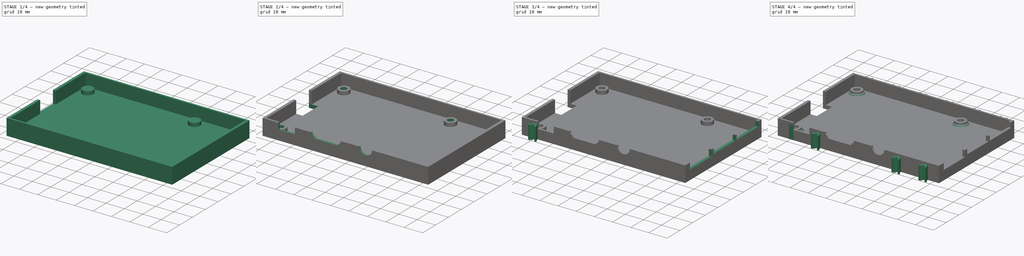
[diagram: build sequence overview — one tinted view per stage of 4, left to right]
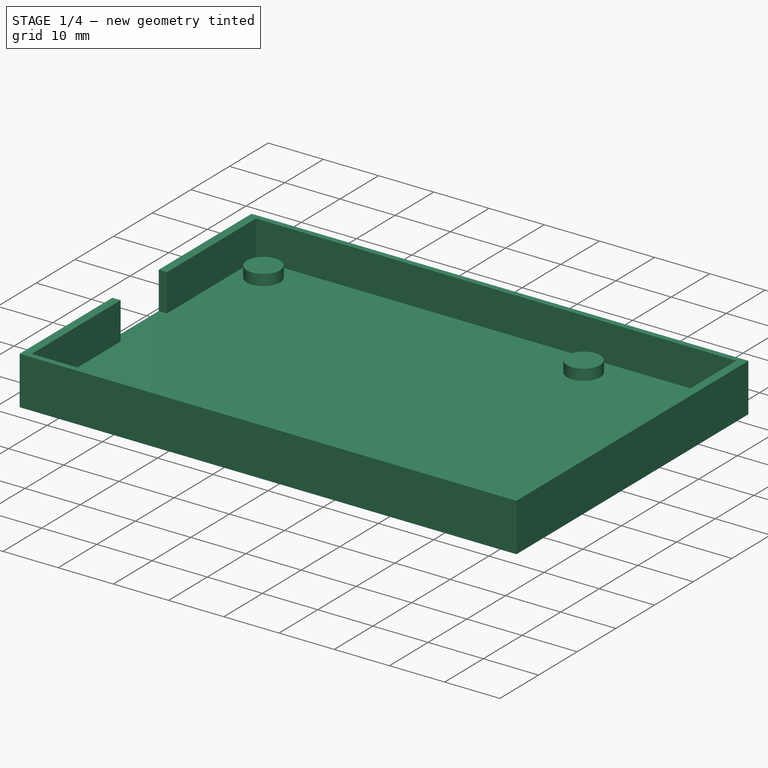
[diagram: stage 1 of 4 — iso view after this stage's code; geometry added in this stage tinted green]
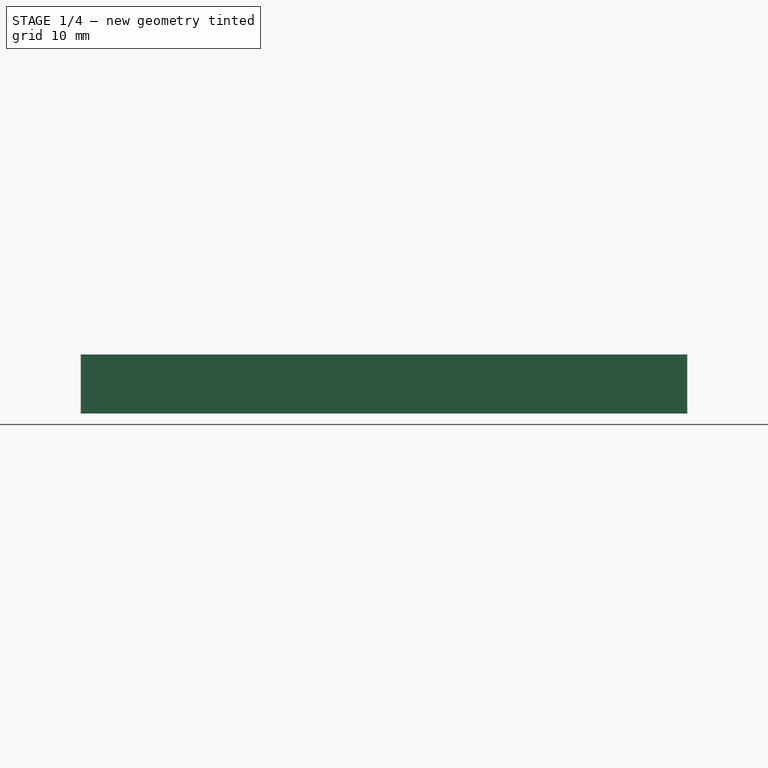
[diagram: stage 1 of 4 — front view after this stage's code; geometry added in this stage tinted green]
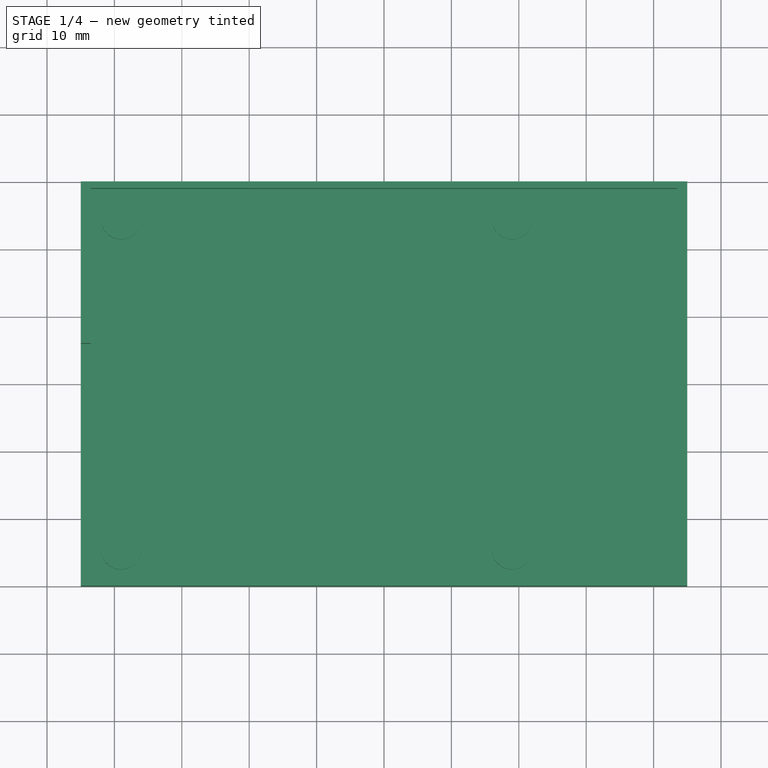
[diagram: stage 1 of 4 — top view after this stage's code; geometry added in this stage tinted green]
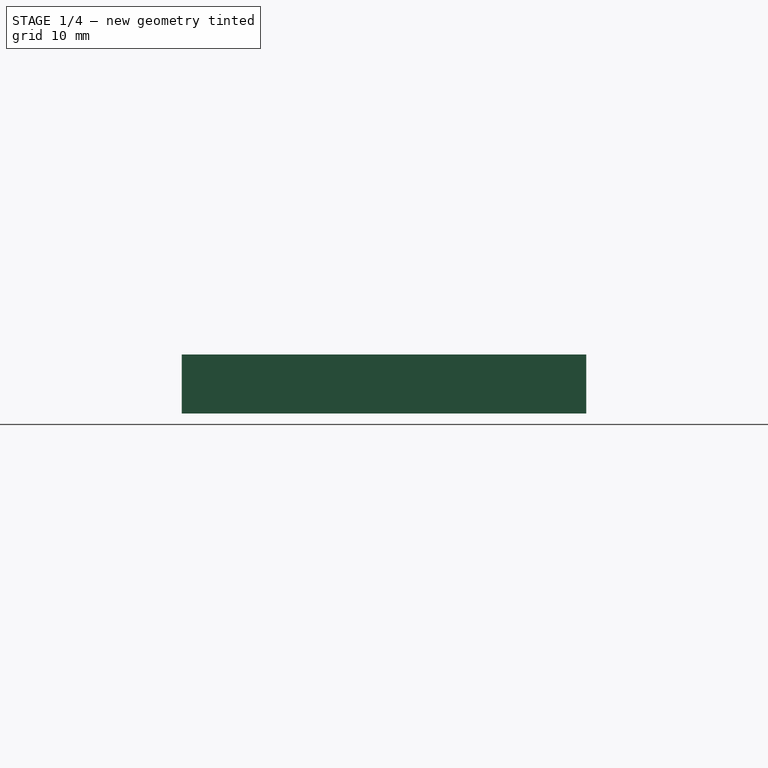
[diagram: stage 1 of 4 — right view after this stage's code; geometry added in this stage tinted green]
FCSTD DOCUMENT  (FreeCAD 0.16R6707 (Git))
Label: bottom
License: All rights reserved
LicenseURL: http://en.wikipedia.org/wiki/All_rights_reserved
objects: Sketcher::SketchObject×9, PartDesign::Pocket×5, PartDesign::Pad×4, PartDesign::Chamfer×2, PartDesign::LinearPattern×1, PartDesign::Mirrored×1, PartDesign::MultiTransform×1
note: 32 computed .brp shape members not serialized (recipe doc carries the construction recipe); baked Part::Feature solids carry a one-line shape summary decoded from their .brp

FEATURE [Sketcher::SketchObject] Sketch
  sketch-geometry (4):
    g0: LineSegment StartX=-45 StartY=30 StartZ=0 EndX=45 EndY=30 EndZ=0
    g1: LineSegment StartX=45 StartY=30 StartZ=0 EndX=45 EndY=-30 EndZ=0
    g2: LineSegment StartX=45 StartY=-30 StartZ=0 EndX=-45 EndY=-30 EndZ=0
    g3: LineSegment StartX=-45 StartY=-30 StartZ=0 EndX=-45 EndY=30 EndZ=0
  constraints (12):
    c: Coincident(g0,g1)
    c: Coincident(g1,g2)
    c: Coincident(g2,g3)
    c: Coincident(g3,g0)
    c: Horizontal(g0)
    c: Horizontal(g2)
    c: Vertical(g1)
    c: Vertical(g3)
    c: Symmetric(g0,g0,g-2)
    c: Symmetric(g0,g2,g-1)
    c: DistanceX(g0,g0) = 90
    c: DistanceY(g2,g0) = 60
FEATURE [PartDesign::Pad] Pad  label="Base"
  Length = 2
  Length2 = 100
  Sketch = -> Sketch
  Type = 0
FEATURE [Sketcher::SketchObject] Sketch001
  Placement = pos=(0,0,2) rot=(0,0,1;0rad)
  Support = -> Pad [Face6]
  sketch-geometry (8):
    g0: Circle CenterX=-39 CenterY=24.5 CenterZ=0 NormalX=0 NormalY=0 NormalZ=1 Radius=3
    g1: Circle CenterX=19 CenterY=24.5 CenterZ=0 NormalX=0 NormalY=0 NormalZ=1 Radius=3
    g2: Circle CenterX=19 CenterY=-24.5 CenterZ=0 NormalX=0 NormalY=0 NormalZ=1 Radius=3
    g3: Circle CenterX=-39 CenterY=-24.5 CenterZ=0 NormalX=0 NormalY=0 NormalZ=1 Radius=3
    g4: LineSegment [constr] StartX=-39 StartY=24.5 StartZ=0 EndX=19 EndY=24.5 EndZ=0
    g5: LineSegment [constr] StartX=19 StartY=24.5 StartZ=0 EndX=19 EndY=-24.5 EndZ=0
    g6: LineSegment [constr] StartX=19 StartY=-24.5 StartZ=0 EndX=-39 EndY=-24.5 EndZ=0
    g7: LineSegment [constr] StartX=-39 StartY=-24.5 StartZ=0 EndX=-39 EndY=24.5 EndZ=0
  constraints (20):
    c: Radius(g0) = 3
    c: DistanceX(g0,g-1) = 39
    c: DistanceY(g-1,g0) = 24.5
    c: Equal(g3,g2)
    c: Equal(g2,g1)
    c: Equal(g1,g0)
    c: Coincident(g4,g5)
    c: Coincident(g5,g6)
    c: Coincident(g6,g7)
    c: Coincident(g7,g4)
    c: Horizontal(g4)
    c: Horizontal(g6)
    c: Vertical(g5)
    c: Vertical(g7)
    c: Coincident(g5,g2)
    c: Coincident(g4,g0)
    c: Coincident(g1,g4)
    c: Coincident(g3,g6)
    c: Symmetric(g0,g3,g-1)
    c: DistanceX(g0,g1) = 58
FEATURE [PartDesign::Pad] Pad001  label="Screw blocks"
  Length = 2
  Length2 = 100
  Sketch = -> Sketch001
  Type = 0
FEATURE [Sketcher::SketchObject] Sketch002
  Placement = pos=(0,0,2) rot=(0,0,1;0rad)
  Support = -> Pad001 [Face5]
  sketch-geometry (16):
    g0: LineSegment StartX=-43.5 StartY=29 StartZ=0 EndX=43.5 EndY=29 EndZ=0
    g1: LineSegment StartX=43.5 StartY=29 StartZ=0 EndX=43.5 EndY=-29 EndZ=0
    g2: LineSegment StartX=43.5 StartY=-29 StartZ=0 EndX=-43.5 EndY=-29 EndZ=0
    g3: LineSegment StartX=-45 StartY=30 StartZ=0 EndX=45 EndY=30 EndZ=0
    g4: LineSegment StartX=45 StartY=30 StartZ=0 EndX=45 EndY=-30 EndZ=0
    g5: LineSegment StartX=45 StartY=-30 StartZ=0 EndX=-45 EndY=-30 EndZ=0
    g6: LineSegment StartX=-45 StartY=30 StartZ=0 EndX=-45 EndY=6 EndZ=0
    g7: LineSegment StartX=-45 StartY=6 StartZ=0 EndX=-43.5 EndY=6 EndZ=0
    g8: LineSegment StartX=-43.5 StartY=6 StartZ=0 EndX=-43.5 EndY=29 EndZ=0
    g9: LineSegment StartX=-45 StartY=-30 StartZ=0 EndX=-45 EndY=-6 EndZ=0
    g10: LineSegment StartX=-45 StartY=-6 StartZ=0 EndX=-43.5 EndY=-6 EndZ=0
    g11: LineSegment StartX=-43.5 StartY=-6 StartZ=0 EndX=-43.5 EndY=-29 EndZ=0
    g12: LineSegment [constr] StartX=-45 StartY=6 StartZ=0 EndX=-43.5 EndY=6 EndZ=0
    g13: LineSegment [constr] StartX=-43.5 StartY=6 StartZ=0 EndX=-43.5 EndY=-6 EndZ=0
    g14: LineSegment [constr] StartX=-43.5 StartY=-6 StartZ=0 EndX=-45 EndY=-6 EndZ=0
    g15: LineSegment [constr] StartX=-45 StartY=-6 StartZ=0 EndX=-45 EndY=6 EndZ=0
  constraints (46):
    c: Coincident(g0,g1)
    c: Coincident(g1,g2)
    c: Horizontal(g0)
    c: Horizontal(g2)
    c: Vertical(g1)
    c: Coincident(g3,g4)
    c: Coincident(g4,g5)
    c: Horizontal(g3)
    c: Horizontal(g5)
    c: Vertical(g4)
    c: Coincident(g6,g3)
    c: Vertical(g6)
    c: Coincident(g7,g6)
    c: Horizontal(g7)
    c: Coincident(g8,g7)
    c: Coincident(g8,g0)
    c: Vertical(g8)
    c: Coincident(g9,g5)
    c: Vertical(g9)
    c: Coincident(g10,g9)
    c: Horizontal(g10)
    c: Coincident(g11,g10)
    c: Coincident(g11,g2)
    c: Vertical(g11)
    c: Coincident(g12,g13)
    c: Coincident(g13,g14)
    c: Coincident(g14,g15)
    c: Coincident(g15,g12)
    c: Horizontal(g12)
    c: Horizontal(g14)
    c: Vertical(g13)
    c: Vertical(g15)
    c: Coincident(g12,g6)
    c: Coincident(g14,g9)
    c: Coincident(g10,g13)
    c: Coincident(g7,g12)
    c: DistanceX(g3,g0) = 1.5
    c: DistanceY(g0,g3) = 1
    c: Symmetric(g3,g3,g-2)
    c: Symmetric(g3,g5,g-1)
    c: DistanceY(g5,g2) = 1
    c: DistanceX(g1,g4) = 1.5
    c: DistanceX(g3,g-1) = 45
    c: DistanceY(g-1,g3) = 30
    c: Symmetric(g7,g10,g-1)
    c: DistanceY(g9,g6) = 12
FEATURE [PartDesign::Pad] Pad002  label="sides"
  Length = 6.75
  Length2 = 100
  Sketch = -> Sketch002
  Type = 0
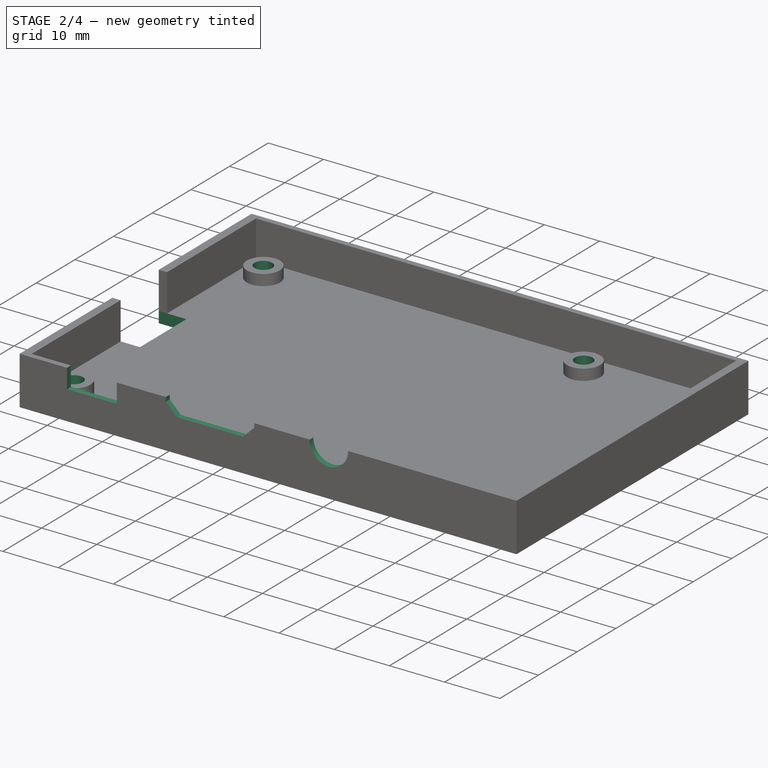
[diagram: stage 2 of 4 — iso view after this stage's code; geometry added in this stage tinted green]
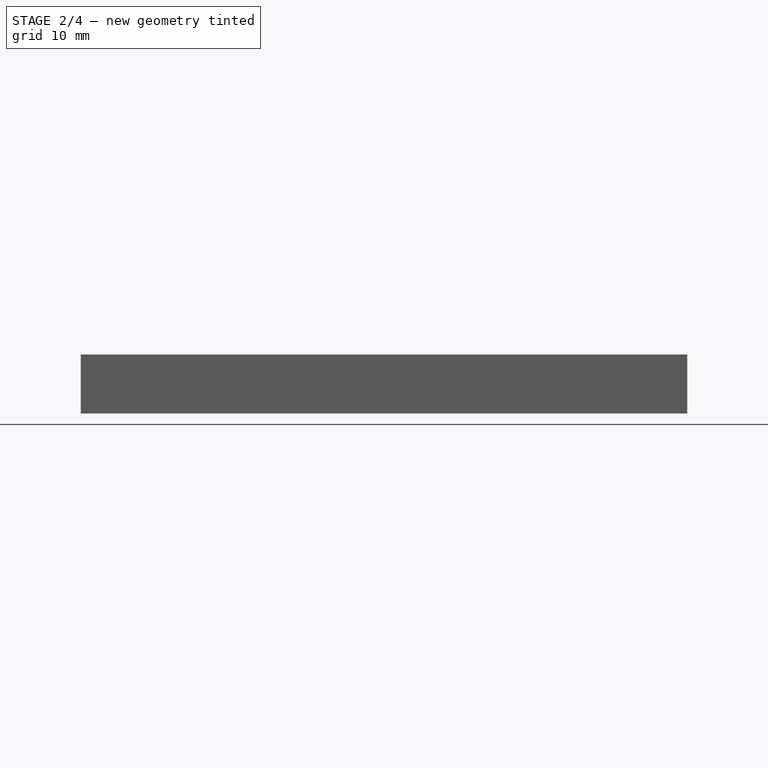
[diagram: stage 2 of 4 — front view after this stage's code; geometry added in this stage tinted green]
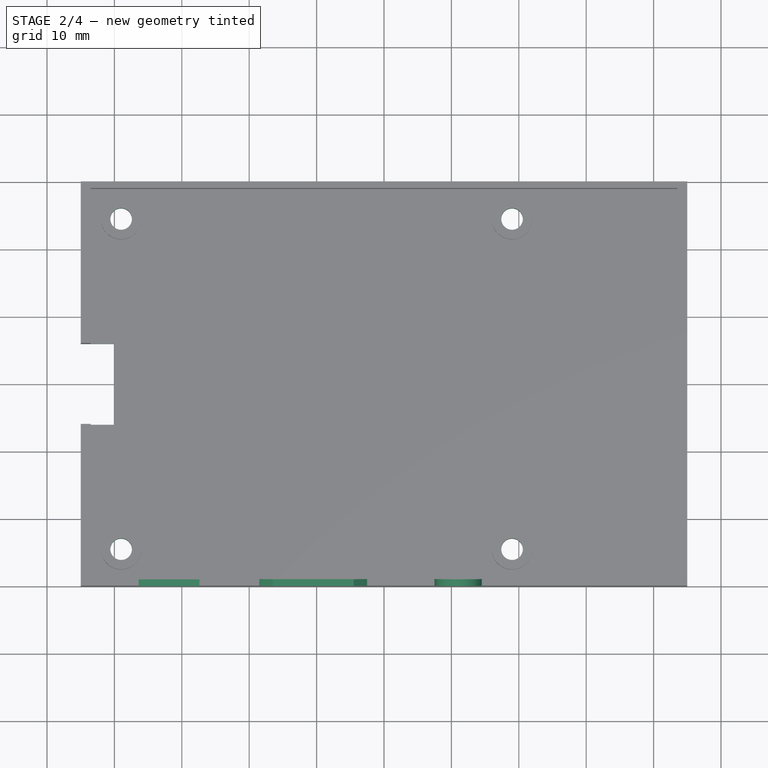
[diagram: stage 2 of 4 — top view after this stage's code; geometry added in this stage tinted green]
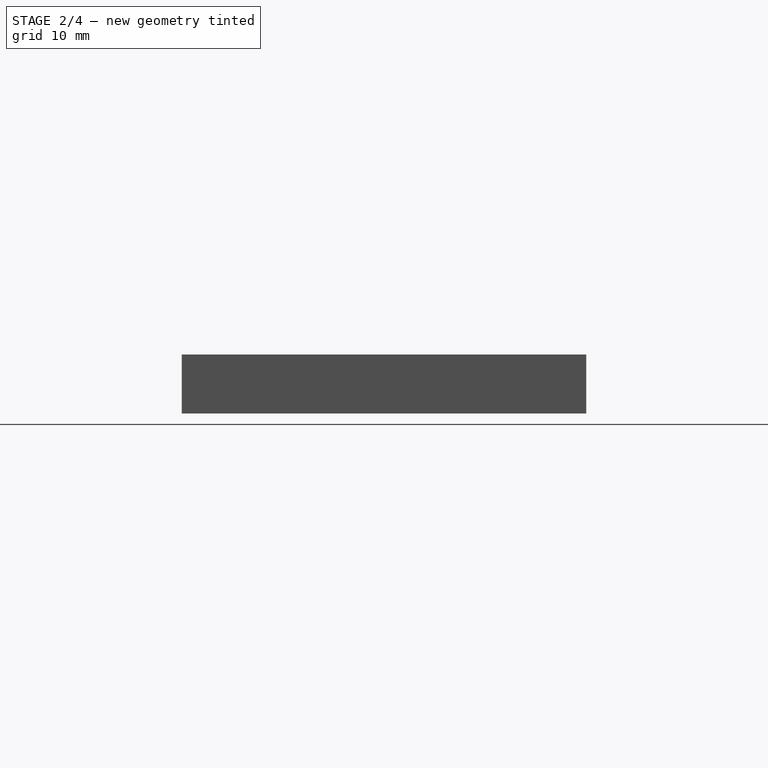
[diagram: stage 2 of 4 — right view after this stage's code; geometry added in this stage tinted green]
FEATURE [Sketcher::SketchObject] Sketch003
  Placement = pos=(0,0,0) rot=(1,0,0;3.14159rad)
  Support = -> Pad002 [Face1]
  sketch-geometry (4):
    g0: LineSegment StartX=-45 StartY=6 StartZ=0 EndX=-40 EndY=6 EndZ=0
    g1: LineSegment StartX=-40 StartY=6 StartZ=0 EndX=-40 EndY=-6 EndZ=0
    g2: LineSegment StartX=-40 StartY=-6 StartZ=0 EndX=-45 EndY=-6 EndZ=0
    g3: LineSegment StartX=-45 StartY=-6 StartZ=0 EndX=-45 EndY=6 EndZ=0
  constraints (12):
    c: Coincident(g0,g1)
    c: Coincident(g1,g2)
    c: Coincident(g2,g3)
    c: Coincident(g3,g0)
    c: Horizontal(g0)
    c: Horizontal(g2)
    c: Vertical(g1)
    c: Vertical(g3)
    c: DistanceX(g0,g0) = 5
    c: DistanceY(g1,g0) = 12
    c: Symmetric(g0,g1,g-1)
    c: DistanceX(g0,g-1) = 45
FEATURE [PartDesign::Pocket] Pocket  label="SD card hole"
  Length = 5
  Sketch = -> Sketch003
  Type = 0
FEATURE [Sketcher::SketchObject] Sketch004
  ExternalGeometry = -> [Pocket]
  Placement = pos=(0,-30,0) rot=(1,0,0;1.5708rad)
  Support = -> Pocket [Face12]
  sketch-geometry (15):
    g0: LineSegment StartX=-36.4 StartY=8.75 StartZ=0 EndX=-27.4 EndY=8.75 EndZ=0
    g1: LineSegment StartX=-27.4 StartY=8.75 StartZ=0 EndX=-27.4 EndY=5.25 EndZ=0
    g2: LineSegment StartX=-27.4 StartY=5.25 StartZ=0 EndX=-36.4 EndY=5.25 EndZ=0
    g3: LineSegment StartX=-36.4 StartY=5.25 StartZ=0 EndX=-36.4 EndY=8.75 EndZ=0
    g4: GeomPoint [constr] X=-31.9 Y=8.75 Z=0
    g5: LineSegment StartX=-18.5 StartY=8.75 StartZ=0 EndX=-2.5 EndY=8.75 EndZ=0
    g6: GeomPoint [constr] X=-42.5 Y=8.75 Z=0
    g7: GeomPoint [constr] X=-10.5 Y=8.75 Z=0
    g8: ArcOfCircle CenterX=11 CenterY=8.75 CenterZ=0 NormalX=0 NormalY=0 NormalZ=1 Radius=3.5 StartAngle=3.14159 EndAngle=6.28319
    g9: LineSegment StartX=7.5 StartY=8.75 StartZ=0 EndX=14.5 EndY=8.75 EndZ=0
    g10: LineSegment StartX=-16.5 StartY=6 StartZ=0 EndX=-4.5 EndY=6 EndZ=0
    g11: LineSegment StartX=-18.5 StartY=8.75 StartZ=0 EndX=-18.5 EndY=8 EndZ=0
    g12: LineSegment StartX=-16.5 StartY=6 StartZ=0 EndX=-18.5 EndY=8 EndZ=0
    g13: LineSegment StartX=-2.5 StartY=8.75 StartZ=0 EndX=-2.5 EndY=8 EndZ=0
    g14: LineSegment StartX=-2.5 StartY=8 StartZ=0 EndX=-4.5 EndY=6 EndZ=0
  constraints (43):
    c: Coincident(g0,g1)
    c: Coincident(g1,g2)
    c: Coincident(g2,g3)
    c: Coincident(g3,g0)
    c: Horizontal(g0)
    c: Horizontal(g2)
    c: Vertical(g1)
    c: Vertical(g3)
    c: DistanceX(g2,g1) = 9
    c: DistanceY(g-1,g2) = 5.25
    c: PointOnObject(g0,g-3)
    c: PointOnObject(g4,g-3)
    c: Symmetric(g0,g0,g4)
    c: Horizontal(g5)
    c: PointOnObject(g5,g-3)
    c: DistanceX(g5,g5) = 16
    c: DistanceY(g-1,g10) = 6
    c: PointOnObject(g6,g-3)
    c: DistanceX(g-3,g6) = 2.5
    c: DistanceX(g6,g4) = 10.6
    c: PointOnObject(g7,g-3)
    c: Symmetric(g5,g5,g7)
    c: DistanceX(g6,g7) = 32
    c: Radius(g8) = 3.5
    c: DistanceY(g-1,g8) = 8.75
    c: Coincident(g9,g8)
    c: Coincident(g9,g8)
    c: Horizontal(g9)
    c: PointOnObject(g8,g-3)
    c: DistanceX(g6,g8) = 53.5
    c: Horizontal(g10)
    c: Coincident(g11,g5)
    c: Coincident(g12,g11)
    c: Coincident(g10,g12)
    c: DistanceY(g10,g11) = 2
    c: DistanceX(g11,g10) = 2
    c: Vertical(g11)
    c: Coincident(g14,g13)
    c: Coincident(g14,g10)
    c: Coincident(g13,g5)
    c: Vertical(g13)
    c: DistanceX(g10,g13) = 2
    c: DistanceY(g10,g13) = 2
FEATURE [PartDesign::Pocket] Pocket001  label="side connector openings"
  Length = 5
  Sketch = -> Sketch004
  Type = 2
FEATURE [Sketcher::SketchObject] Sketch005
  Placement = pos=(0,0,0) rot=(1,0,0;3.14159rad)
  Support = -> Pocket001 [Face1]
  sketch-geometry (8):
    g0: Circle CenterX=-39 CenterY=24.5 CenterZ=0 NormalX=0 NormalY=0 NormalZ=1 Radius=1.6
    g1: Circle CenterX=19 CenterY=24.5 CenterZ=0 NormalX=0 NormalY=0 NormalZ=1 Radius=1.6
    g2: Circle CenterX=-39 CenterY=-24.5 CenterZ=0 NormalX=0 NormalY=0 NormalZ=1 Radius=1.6
    g3: Circle CenterX=19 CenterY=-24.5 CenterZ=0 NormalX=0 NormalY=0 NormalZ=1 Radius=1.6
    g4: LineSegment [constr] StartX=-39 StartY=24.5 StartZ=0 EndX=19 EndY=24.5 EndZ=0
    g5: LineSegment [constr] StartX=19 StartY=24.5 StartZ=0 EndX=19 EndY=-24.5 EndZ=0
    g6: LineSegment [constr] StartX=19 StartY=-24.5 StartZ=0 EndX=-39 EndY=-24.5 EndZ=0
    g7: LineSegment [constr] StartX=-39 StartY=-24.5 StartZ=0 EndX=-39 EndY=24.5 EndZ=0
  constraints (20):
    c: Radius(g0) = 1.6
    c: Equal(g0,g1)
    c: Equal(g1,g3)
    c: Equal(g3,g2)
    c: Coincident(g4,g5)
    c: Coincident(g5,g6)
    c: Coincident(g6,g7)
    c: Coincident(g7,g4)
    c: Horizontal(g4)
    c: Horizontal(g6)
    c: Vertical(g5)
    c: Vertical(g7)
    c: Symmetric(g4,g6,g-1)
    c: DistanceY(g-1,g4) = 24.5
    c: DistanceX(g4,g4) = 58
    c: DistanceX(g4,g-1) = 39
    c: Coincident(g0,g4)
    c: Coincident(g1,g4)
    c: Coincident(g3,g5)
    c: Coincident(g2,g6)
FEATURE [PartDesign::Pocket] Pocket002  label="screw holes"
  Length = 5
  Sketch = -> Sketch005
  Type = 1
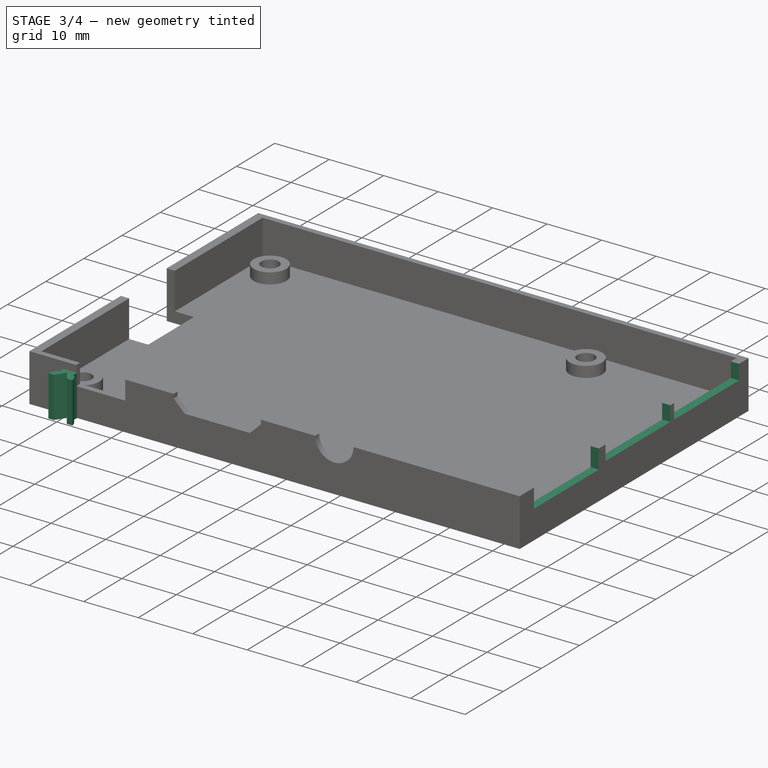
[diagram: stage 3 of 4 — iso view after this stage's code; geometry added in this stage tinted green]
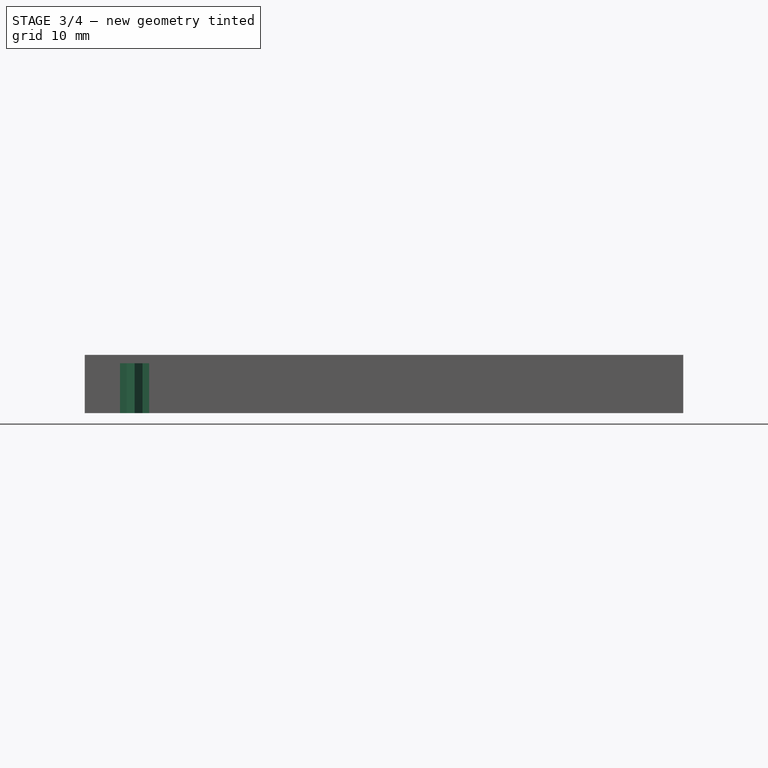
[diagram: stage 3 of 4 — front view after this stage's code; geometry added in this stage tinted green]
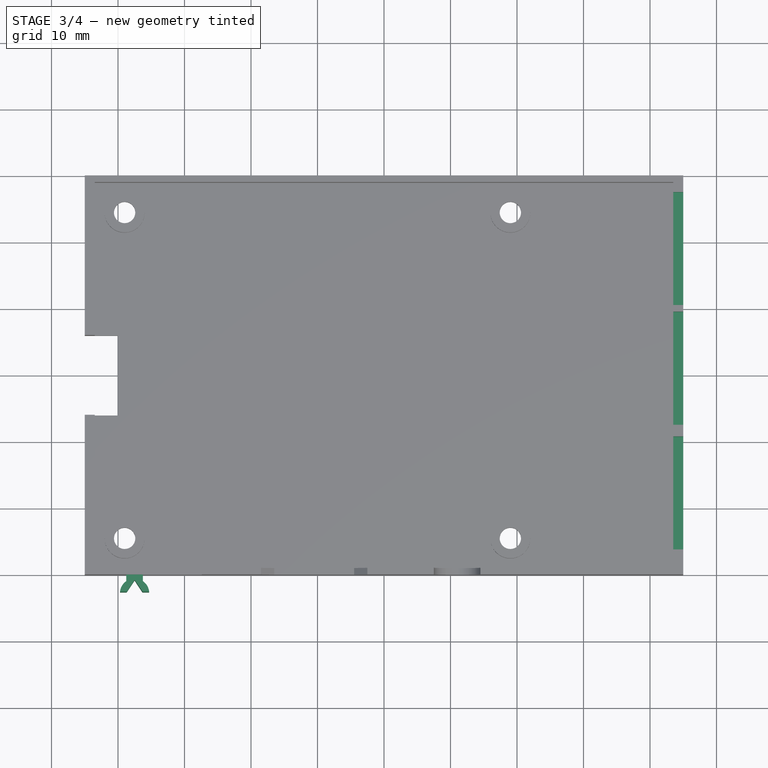
[diagram: stage 3 of 4 — top view after this stage's code; geometry added in this stage tinted green]
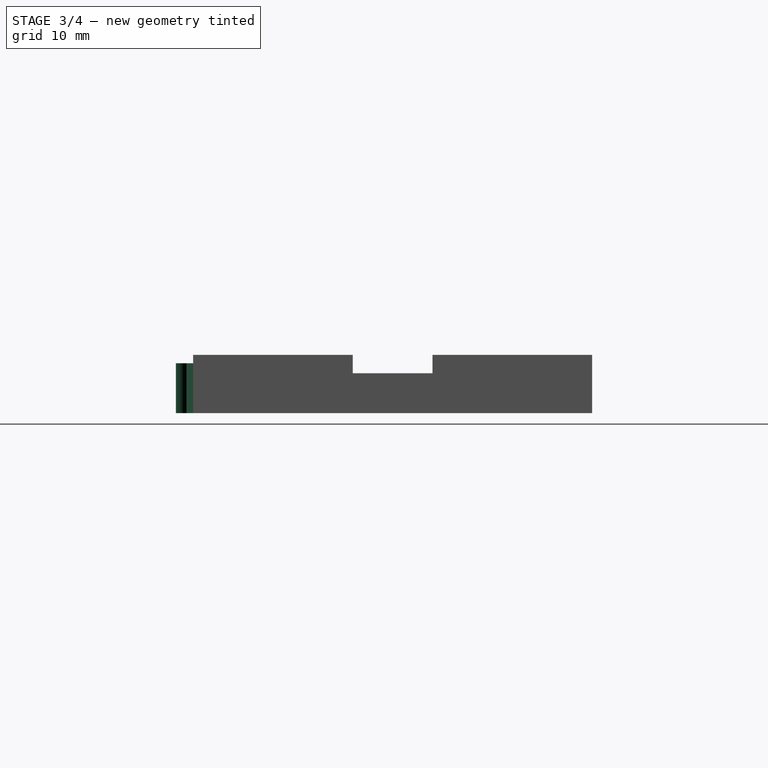
[diagram: stage 3 of 4 — right view after this stage's code; geometry added in this stage tinted green]
FEATURE [PartDesign::Chamfer] Chamfer  label="screw heads"
  Base = -> Pocket002 [Edge12,Edge11,Edge9,Edge10]
  Size = 1.3
FEATURE [Sketcher::SketchObject] Sketch006
  ExternalGeometry = -> [Chamfer]
  Placement = pos=(45,0,0) rot=(0.57735,0.57735,0.57735;2.0944rad)
  Support = -> Chamfer [Face17]
  sketch-geometry (16):
    g0: GeomPoint [constr] X=-17.75 Y=8.75 Z=0
    g1: GeomPoint [constr] X=-28 Y=8.75 Z=0
    g2: GeomPoint [constr] X=1 Y=8.75 Z=0
    g3: GeomPoint [constr] X=19 Y=8.75 Z=0
    g4: LineSegment StartX=-26.25 StartY=8.75 StartZ=0 EndX=-9.25 EndY=8.75 EndZ=0
    g5: LineSegment StartX=-9.25 StartY=8.75 StartZ=0 EndX=-9.25 EndY=5.25 EndZ=0
    g6: LineSegment StartX=-9.25 StartY=5.25 StartZ=0 EndX=-26.25 EndY=5.25 EndZ=0
    g7: LineSegment StartX=-26.25 StartY=5.25 StartZ=0 EndX=-26.25 EndY=8.75 EndZ=0
    g8: LineSegment StartX=-7.5 StartY=8.75 StartZ=0 EndX=9.5 EndY=8.75 EndZ=0
    g9: LineSegment StartX=9.5 StartY=8.75 StartZ=0 EndX=9.5 EndY=6 EndZ=0
    g10: LineSegment StartX=9.5 StartY=6 StartZ=0 EndX=-7.5 EndY=6 EndZ=0
    g11: LineSegment StartX=-7.5 StartY=6 StartZ=0 EndX=-7.5 EndY=8.75 EndZ=0
    g12: LineSegment StartX=10.5 StartY=8.75 StartZ=0 EndX=27.5 EndY=8.75 EndZ=0
    g13: LineSegment StartX=27.5 StartY=8.75 StartZ=0 EndX=27.5 EndY=6 EndZ=0
    g14: LineSegment StartX=27.5 StartY=6 StartZ=0 EndX=10.5 EndY=6 EndZ=0
    g15: LineSegment StartX=10.5 StartY=6 StartZ=0 EndX=10.5 EndY=8.75 EndZ=0
  constraints (44):
    c: PointOnObject(g0,g-3)
    c: PointOnObject(g1,g-3)
    c: PointOnObject(g2,g-3)
    c: PointOnObject(g3,g-3)
    c: DistanceX(g-3,g1) = 2
    c: DistanceX(g1,g0) = 10.25
    c: DistanceX(g1,g2) = 29
    c: DistanceX(g1,g3) = 47
    c: Coincident(g4,g5)
    c: Coincident(g5,g6)
    c: Coincident(g6,g7)
    c: Coincident(g7,g4)
    c: Horizontal(g4)
    c: Horizontal(g6)
    c: Vertical(g5)
    c: Vertical(g7)
    c: PointOnObject(g4,g-3)
    c: Coincident(g8,g9)
    c: Coincident(g9,g10)
    c: Coincident(g10,g11)
    c: Coincident(g11,g8)
    c: Horizontal(g8)
    c: Horizontal(g10)
    c: Vertical(g9)
    c: Vertical(g11)
    c: PointOnObject(g8,g-3)
    c: Coincident(g12,g13)
    c: Coincident(g13,g14)
    c: Coincident(g14,g15)
    c: Coincident(g15,g12)
    c: Horizontal(g12)
    c: Horizontal(g14)
    c: Vertical(g13)
    c: Vertical(g15)
    c: PointOnObject(g12,g-3)
    c: Symmetric(g4,g4,g0)
    c: DistanceY(g-4,g6) = 3.25
    c: DistanceY(g-4,g10) = 4
    c: DistanceY(g-4,g14) = 4
    c: Symmetric(g8,g8,g2)
    c: Symmetric(g12,g12,g3)
    c: DistanceX(g4,g4) = 17
    c: DistanceX(g8,g8) = 17
    c: DistanceX(g12,g12) = 17
FEATURE [PartDesign::Pocket] Pocket003  label="front connector openings"
  Length = 5
  Sketch = -> Sketch006
  Type = 2
FEATURE [Sketcher::SketchObject] Sketch007
  ExternalGeometry = -> [Pocket003]
  Placement = pos=(0,0,0) rot=(1,0,0;3.14159rad)
  Support = -> Pocket003 [Face1]
  sketch-geometry (13):
    g0: GeomPoint [constr] X=-37.5 Y=30 Z=0
    g1: LineSegment StartX=-38.75 StartY=30 StartZ=0 EndX=-36.25 EndY=30 EndZ=0
    g2: LineSegment StartX=-38.75 StartY=30 StartZ=0 EndX=-38.75 EndY=31 EndZ=0
    g3: LineSegment StartX=-36.25 StartY=30 StartZ=0 EndX=-36.25 EndY=31 EndZ=0
    g4: LineSegment [constr] StartX=-38.75 StartY=31 StartZ=0 EndX=-36.25 EndY=31 EndZ=0
    g5: ArcOfCircle CenterX=-37.5 CenterY=32.8104 CenterZ=0 NormalX=0 NormalY=0 NormalZ=1 Radius=2.2 StartAngle=3.23737 EndAngle=4.10809
    g6: ArcOfCircle CenterX=-37.5 CenterY=32.8104 CenterZ=0 NormalX=0 NormalY=0 NormalZ=1 Radius=2.2 StartAngle=5.31668 EndAngle=6.18741
    g7: LineSegment StartX=-39.6899 StartY=32.6 StartZ=0 EndX=-38.6899 EndY=32.6 EndZ=0
    g8: LineSegment StartX=-35.3101 StartY=32.6 StartZ=0 EndX=-36.3101 EndY=32.6 EndZ=0
    g9: LineSegment [constr] StartX=-38.6899 StartY=32.6 StartZ=0 EndX=-36.3101 EndY=32.6 EndZ=0
    g10: LineSegment StartX=-38.6899 StartY=32.6 StartZ=0 EndX=-37.5 EndY=30.8104 EndZ=0
    g11: LineSegment StartX=-37.5 StartY=30.8104 StartZ=0 EndX=-36.3101 EndY=32.6 EndZ=0
    g12: LineSegment [constr] StartX=-37.5 StartY=32.8104 StartZ=0 EndX=-37.5 EndY=30.8104 EndZ=0
  constraints (35):
    c: DistanceX(g0,g-1) = 37.5
    c: PointOnObject(g1,g-3)
    c: PointOnObject(g1,g-3)
    c: Symmetric(g1,g1,g0)
    c: DistanceX(g1,g1) = 2.5
    c: Vertical(g2)
    c: Vertical(g3)
    c: Coincident(g4,g2)
    c: Coincident(g4,g3)
    c: Coincident(g2,g1)
    c: Coincident(g1,g3)
    c: DistanceY(g1,g3) = 1
    c: Horizontal(g4)
    c: Coincident(g5,g2)
    c: Coincident(g6,g3)
    c: Radius(g5) = 2.2
    c: Equal(g5,g6)
    c: Coincident(g7,g5)
    c: Horizontal(g7)
    c: Coincident(g8,g6)
    c: Horizontal(g8)
    c: DistanceY(g1,g6) = 2.6
    c: DistanceX(g5,g7) = 1
    c: DistanceX(g8,g6) = 1
    c: Coincident(g9,g7)
    c: Coincident(g9,g8)
    c: Horizontal(g9)
    c: Coincident(g6,g5)
    c: Coincident(g10,g7)
    c: Coincident(g11,g8)
    c: Coincident(g10,g11)
    c: Coincident(g12,g5)
    c: Coincident(g12,g10)
    c: Vertical(g12)
    c: DistanceY(g10,g5) = 2
FEATURE [PartDesign::Pad] Pad003  label="FT mounts"
  Length = 7.5
  Length2 = 100
  Reversed = true
  Sketch = -> Sketch007
  Type = 0
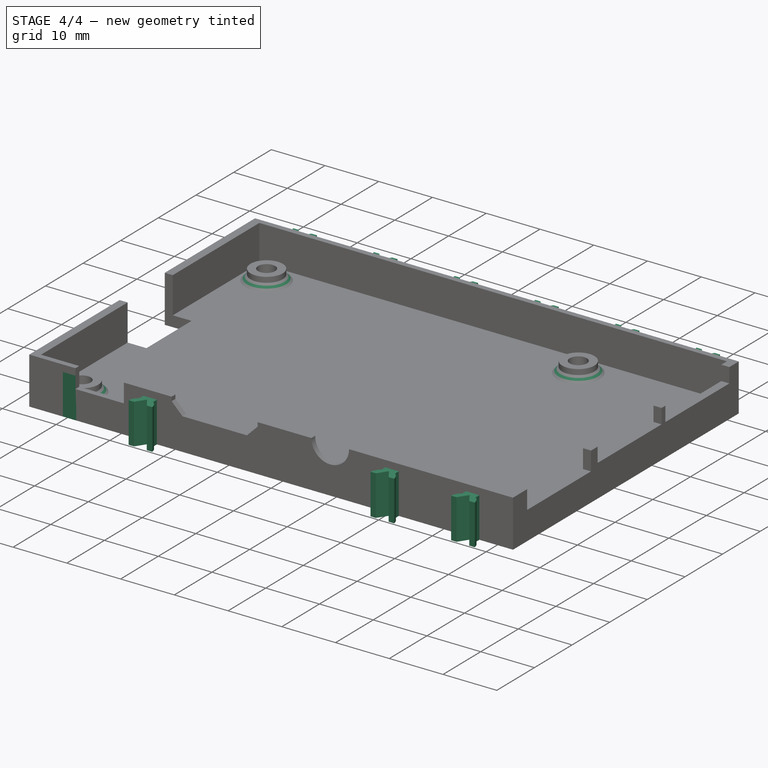
[diagram: stage 4 of 4 — iso view after this stage's code; geometry added in this stage tinted green]
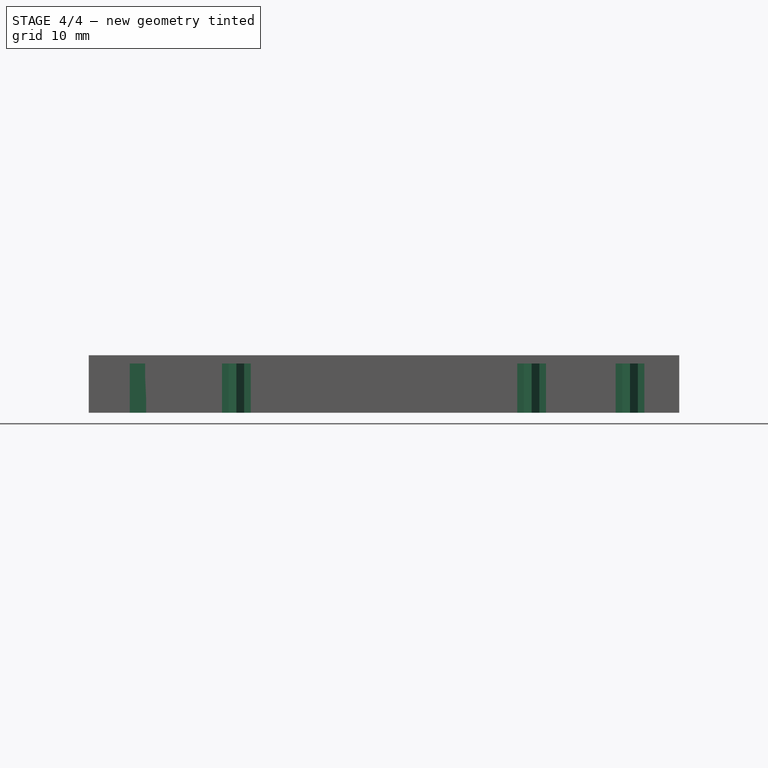
[diagram: stage 4 of 4 — front view after this stage's code; geometry added in this stage tinted green]
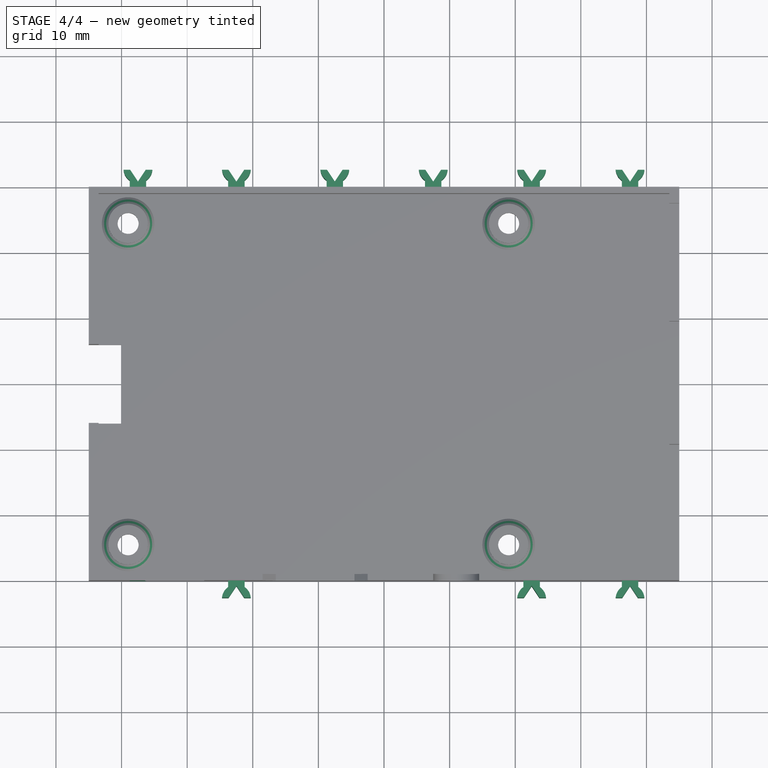
[diagram: stage 4 of 4 — top view after this stage's code; geometry added in this stage tinted green]
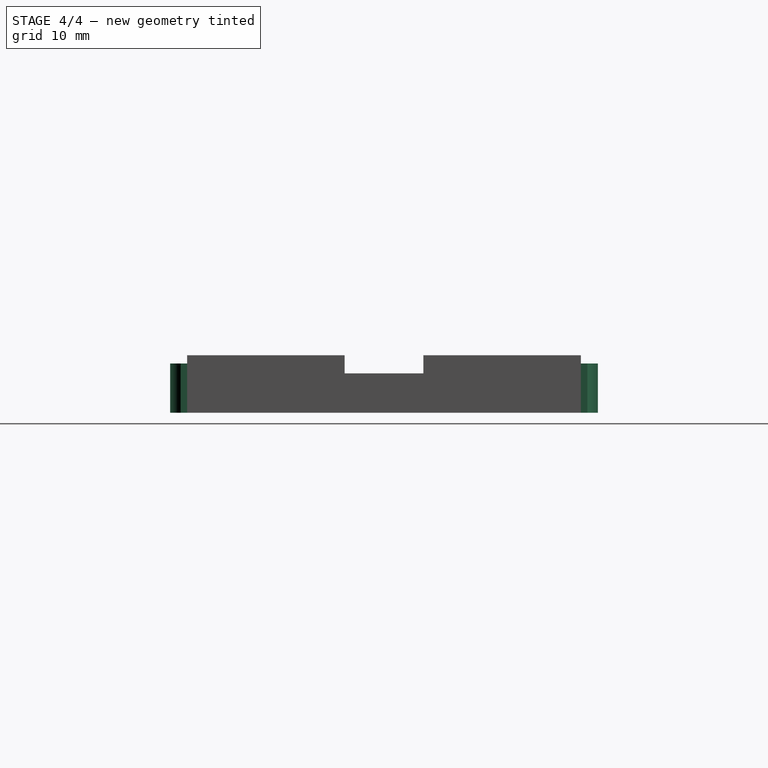
[diagram: stage 4 of 4 — right view after this stage's code; geometry added in this stage tinted green]
FEATURE [PartDesign::LinearPattern] LinearPattern
  Direction = -> Sketch007 [H_Axis]
  Length = 75
  Occurrences = 6
FEATURE [PartDesign::Mirrored] Mirrored
  MirrorPlane = -> Sketch007 [H_Axis]
FEATURE [PartDesign::MultiTransform] MultiTransform
  Originals = -> [Pad003]
  Transformations = -> [Mirrored,LinearPattern]
FEATURE [Sketcher::SketchObject] Sketch008
  ExternalGeometry = -> [MultiTransform]
  Placement = pos=(0,0,0) rot=(1,0,0;3.14159rad)
  Support = -> MultiTransform [Face9]
  sketch-geometry (9):
    g0: LineSegment StartX=-39.75 StartY=33 StartZ=0 EndX=-35.25 EndY=33 EndZ=0
    g1: LineSegment StartX=-35.25 StartY=33 StartZ=0 EndX=-35.25 EndY=30 EndZ=0
    g2: LineSegment StartX=-35.25 StartY=30 StartZ=0 EndX=-39.75 EndY=30 EndZ=0
    g3: LineSegment StartX=-39.75 StartY=30 StartZ=0 EndX=-39.75 EndY=33 EndZ=0
    g4: LineSegment StartX=-9.75 StartY=33 StartZ=0 EndX=9.75 EndY=33 EndZ=0
    g5: LineSegment StartX=9.75 StartY=33 StartZ=0 EndX=9.75 EndY=30 EndZ=0
    g6: LineSegment StartX=9.75 StartY=30 StartZ=0 EndX=-9.75 EndY=30 EndZ=0
    g7: LineSegment StartX=-9.75 StartY=30 StartZ=0 EndX=-9.75 EndY=33 EndZ=0
    g8: LineSegment [constr] StartX=-35.25 StartY=33 StartZ=0 EndX=-9.75 EndY=33 EndZ=0
  constraints (26):
    c: Coincident(g0,g1)
    c: Coincident(g1,g2)
    c: Coincident(g2,g3)
    c: Coincident(g3,g0)
    c: Horizontal(g0)
    c: Horizontal(g2)
    c: Vertical(g1)
    c: Vertical(g3)
    c: PointOnObject(g1,g-4)
    c: Coincident(g4,g5)
    c: Coincident(g5,g6)
    c: Coincident(g6,g7)
    c: Coincident(g7,g4)
    c: Horizontal(g4)
    c: Horizontal(g6)
    c: Vertical(g5)
    c: Vertical(g7)
    c: PointOnObject(g5,g-6)
    c: Coincident(g8,g0)
    c: Coincident(g8,g4)
    c: Horizontal(g8)
    c: DistanceY(g2,g0) = 3
    c: DistanceX(g2,g-3) = 1
    c: DistanceX(g-4,g1) = 1
    c: DistanceX(g6,g-5) = 1
    c: DistanceX(g-6,g5) = 1
FEATURE [PartDesign::Pocket] Pocket004  label="hidden FT mounts"
  Length = 5
  Sketch = -> Sketch008
  Type = 1
FEATURE [PartDesign::Chamfer] Chamfer001
  Base = -> Pocket004 [Edge242,Edge243,Edge241,Edge244]
  Size = 1
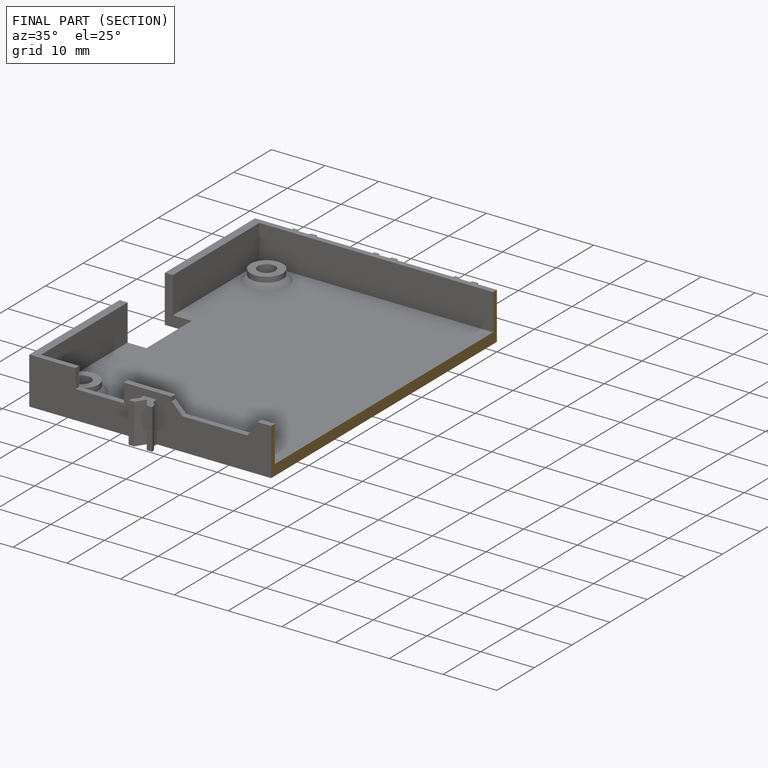
[diagram: finished part — half-section view (interior)]
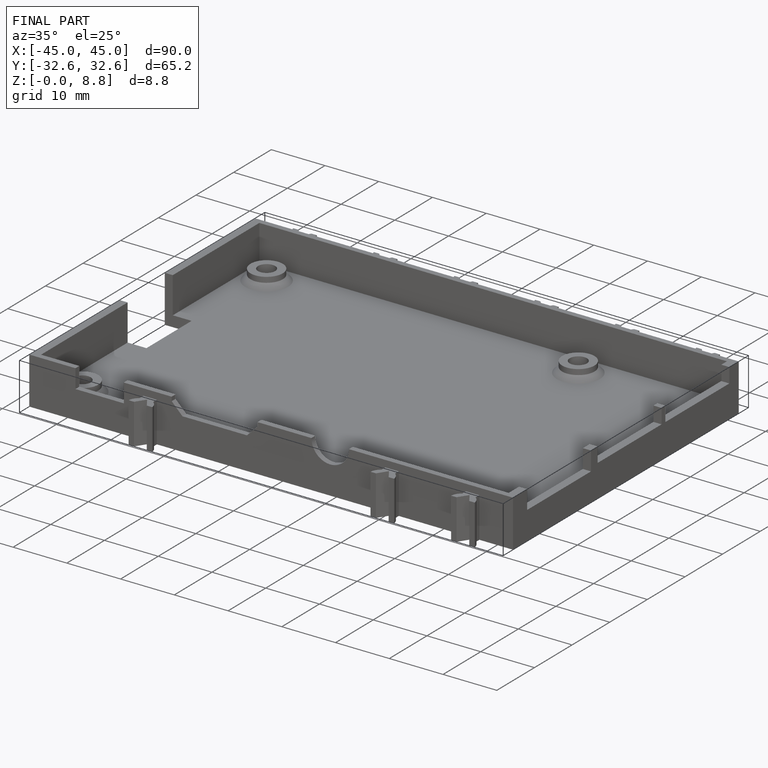
[diagram: finished part — iso view with bounding-box wireframe]
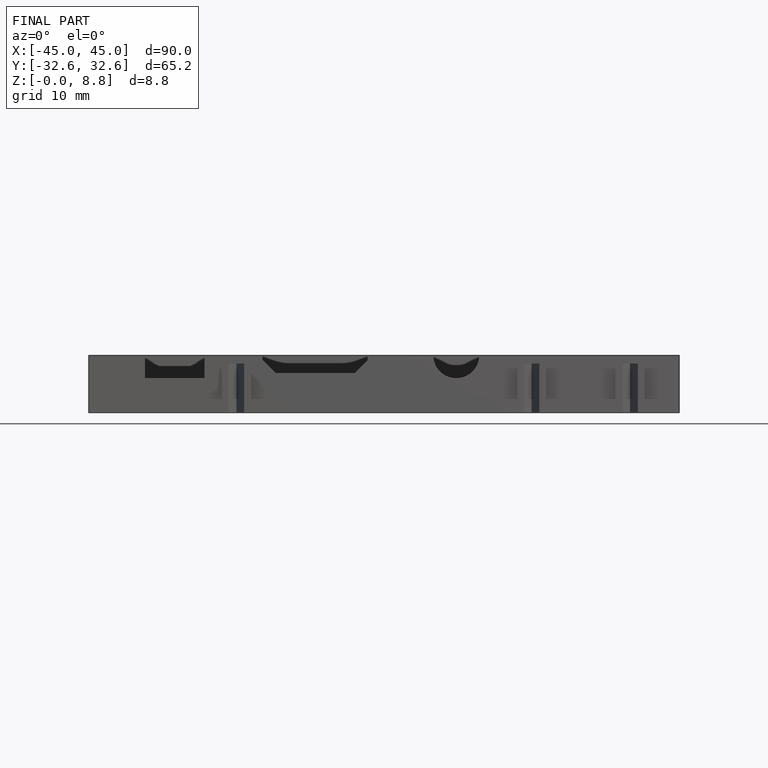
[diagram: finished part — front view with bounding-box wireframe]
